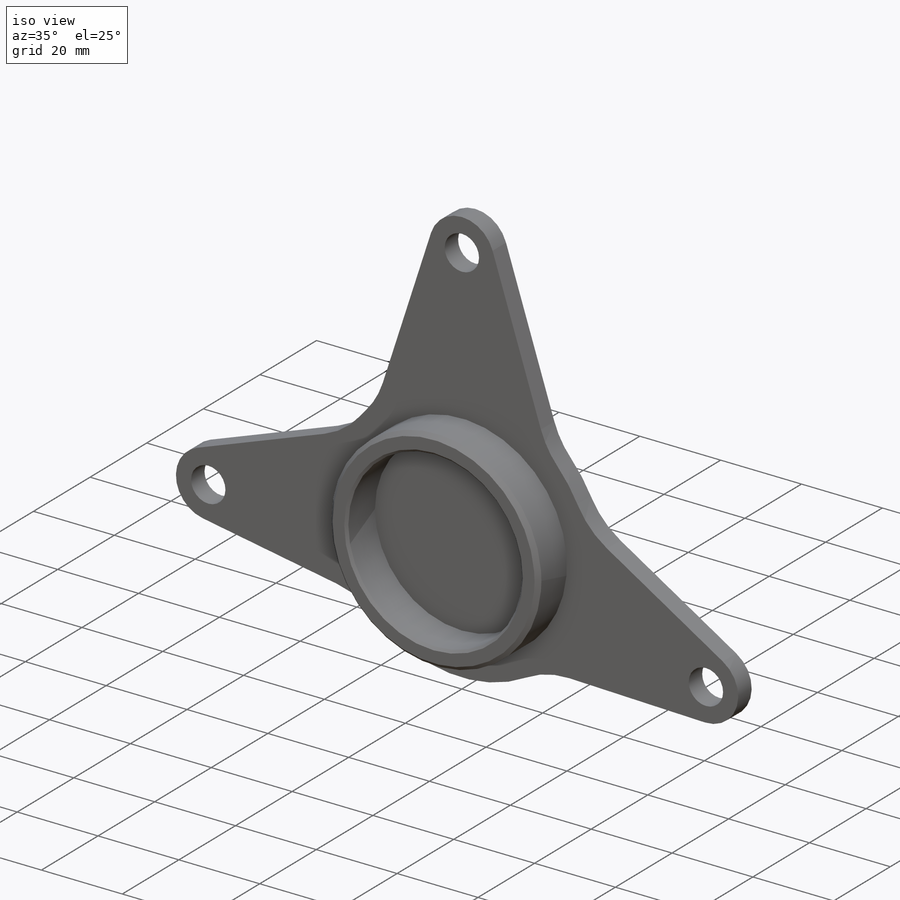
[diagram: iso view]
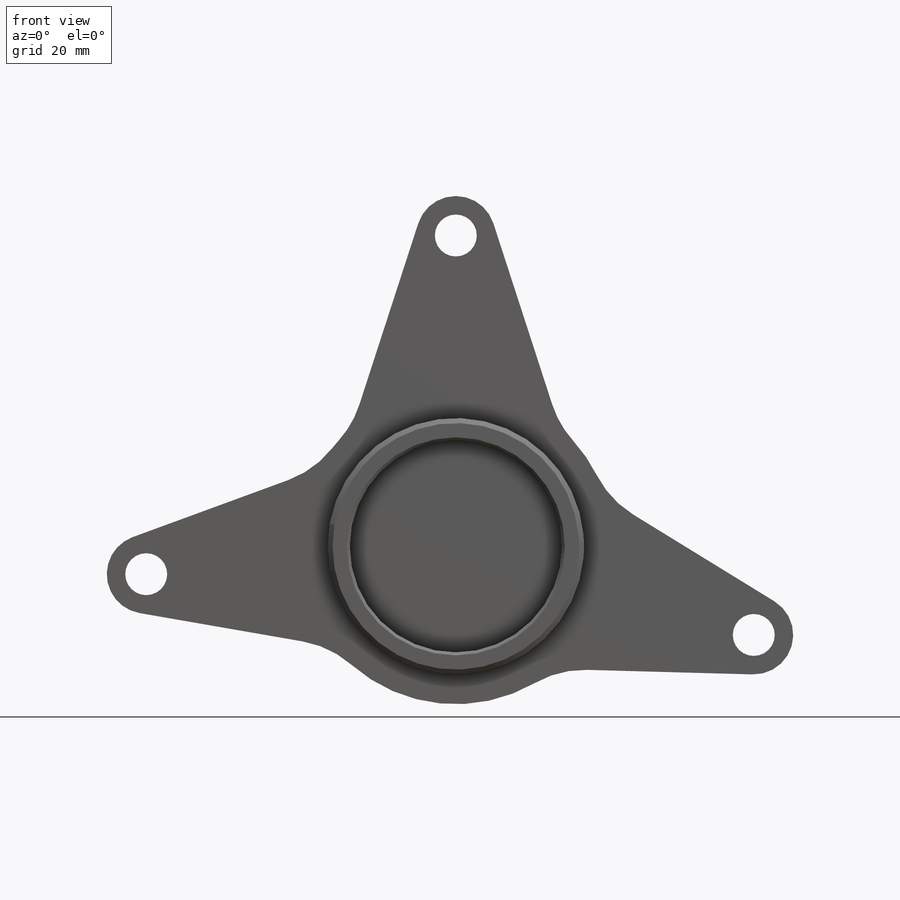
[diagram: front view]
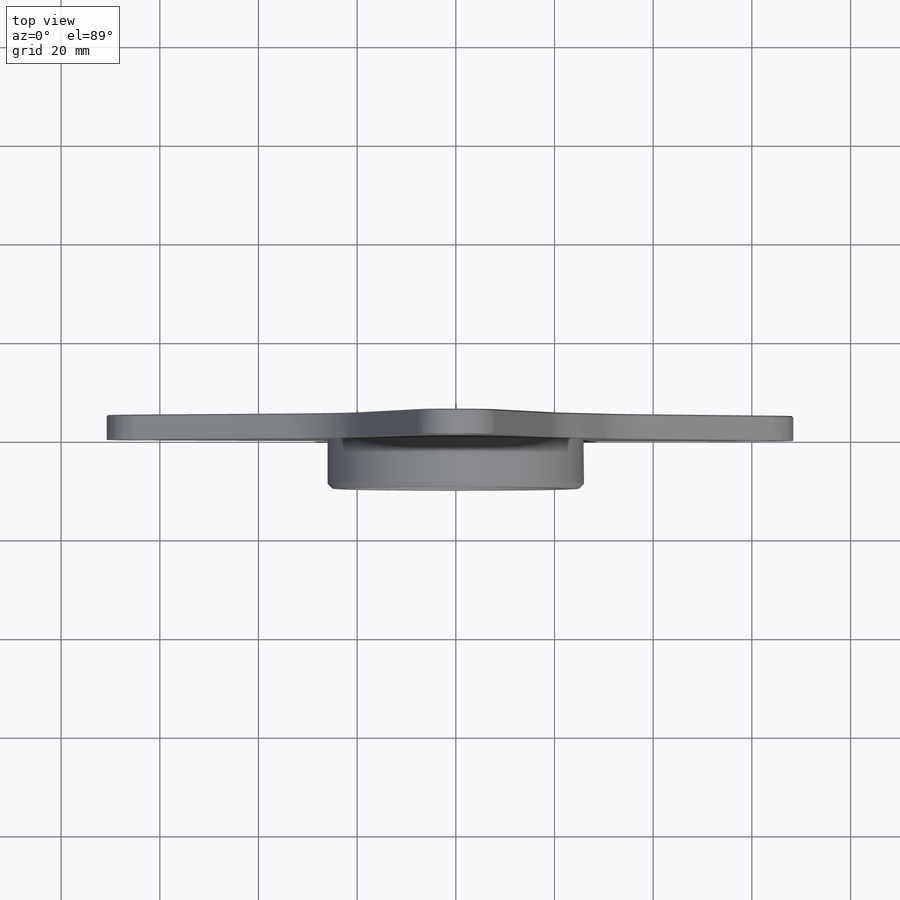
[diagram: top view]
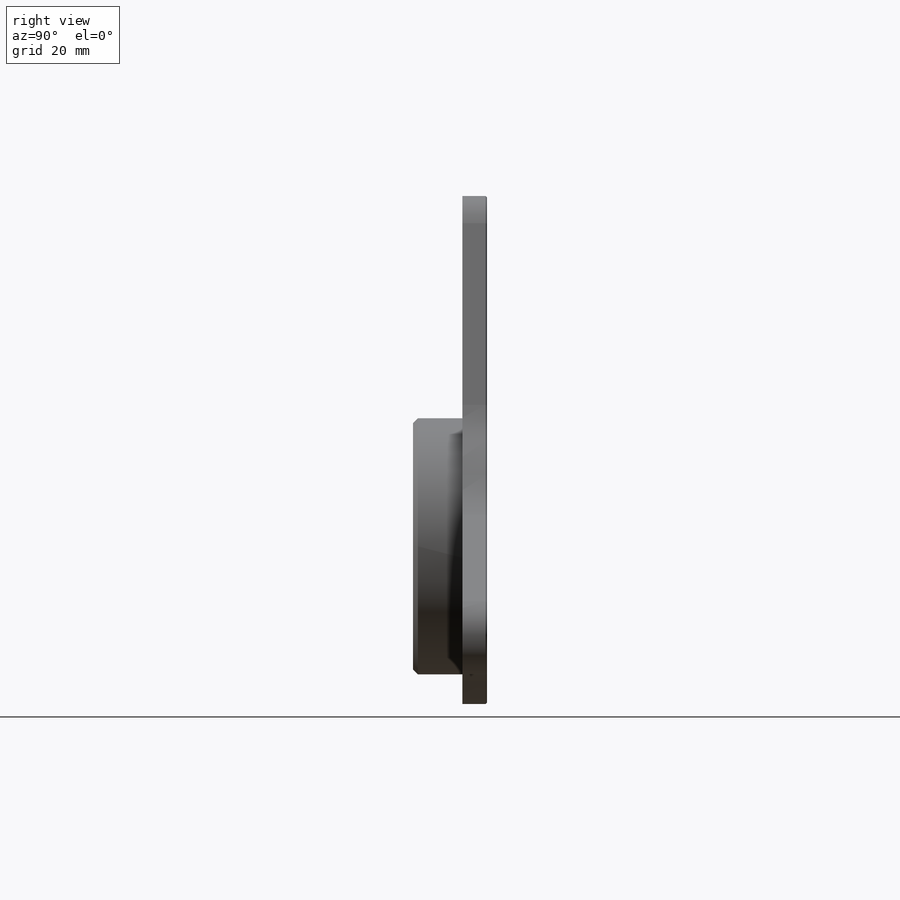
[diagram: right view]
SOLIDWORKS PART (.sldprt)
format: sldprt  version: not decoded by parser v0  size: 313,344 bytes
history: native  units: mm
features: plane x3, chamfer x3, sketch x2, extrude x2, material x1 (+10 scaffold rows collapsed)
feature tree (21):
  scaffold x10  (default folders/planes/origin — collapsed)
  material  "7075-T6 (SN)"
  plane  "Plan de face"
  plane  "Plan de dessus"
  plane  "Plan de droite"
  sketch  "Esquisse1"  dims[D1=51.97mm D2=43.0mm]
  extrude  "Boss.-Extru.1"  Depth=10mm
  chamfer  "Chanfrein1"  Distance=1mm Angle=45deg
  chamfer  "Chanfrein2"  Distance=0.6mm Angle=45deg
  sketch  "Esquisse2"  dims[c1.D1=64.0mm c1.D4=126.0mm c1.D6=8.5mm c1.D7=8.5mm c1.D8=8.5mm c1.D9=16.0mm c1.D10=16.0mm c1.D11=16.0mm c1.D18=20.0mm c1.D2=93.0mm c1.D3=101.0mm c1.D5=~123.746981mm c1.D12=~62.203197mm c2.D12=18.0deg c2.D13=~62.203197mm c3.D13=18.0deg c3.D14=~62.746778mm c4.D14=15.0deg c4.D15=~62.746778mm c5.D15=15.0deg c5.D16=63.0mm c6.D16=15.0deg c6.D17=~60.385652mm c7.D17=15.0deg]
  extrude  "Boss.-Extru.2"  Depth=5mm
  chamfer  "Chanfrein3"  Distance=0.25mm Angle=45deg
decode coverage: 7 of 7 modeling features carry decoded parameters
note: ~ marks probable driven/reference dimensions
note: suppression state not decoded; provenance and decode notes live in map.json
